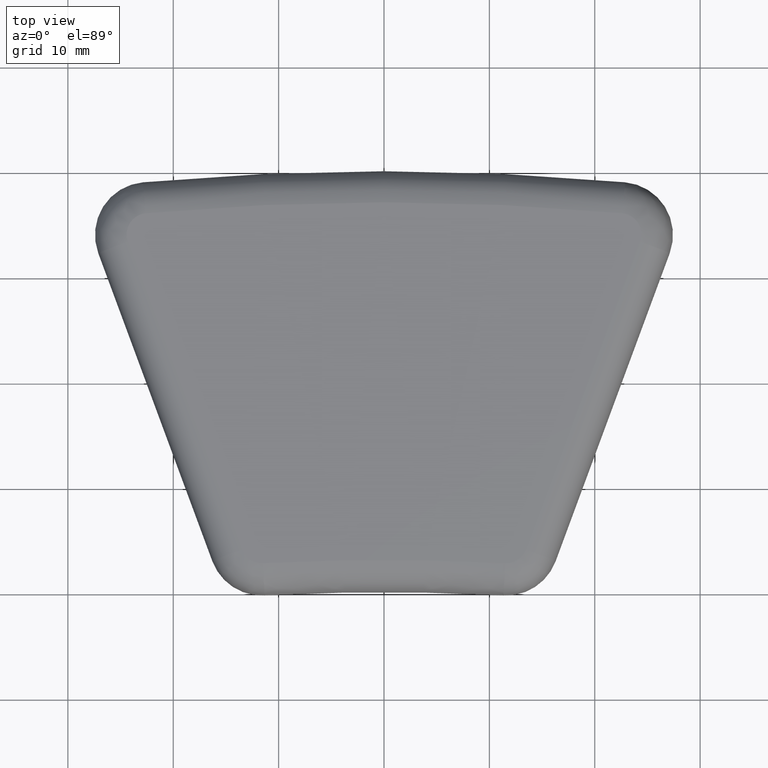
[diagram: clean part render]
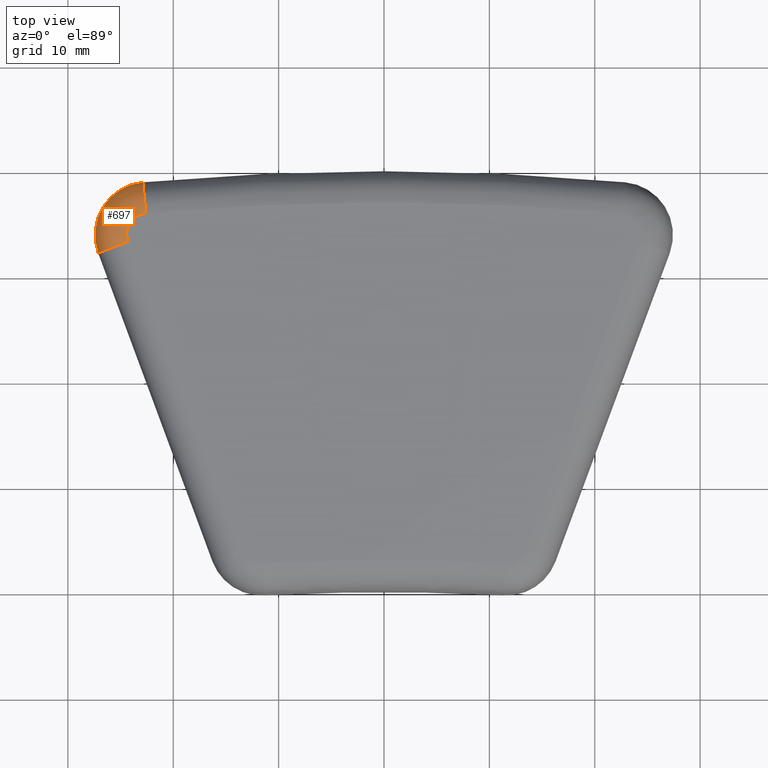
[diagram: same view with one face highlighted and labeled with its STEP entity id]
A machine part, top view. The second image highlights one B-rep face of the part: STEP entity #697.
In plain terms, the highlighted face is a freeform B-spline surface patch.
Its self-contained STEP definition (entity closure, byte-faithful):
#124=CARTESIAN_POINT('',(-22.608780951626066,15.963092808415876,4.0));
#125=VERTEX_POINT('',#124);
#133=CARTESIAN_POINT('',(-24.301222518549796,13.276890070985850,4.0));
#134=VERTEX_POINT('',#133);
#135=CARTESIAN_POINT('',(-22.425713899386182,13.971488818064332,4.0));
#136=DIRECTION('',(0.0,0.0,-1.0));
#137=DIRECTION('',(-0.937754309581807,-0.347299373539241,0.0));
#138=AXIS2_PLACEMENT_3D('',#135,#136,#137);
#139=CIRCLE('',#138,2.000000000000001);
#140=EDGE_CURVE('',#134,#125,#139,.T.);
#216=CARTESIAN_POINT('',(-22.883381529985897,18.950498793943193,1.0));
#217=VERTEX_POINT('',#216);
#240=CARTESIAN_POINT('',(-27.114485447295216,12.234991950368126,1.0));
#241=VERTEX_POINT('',#240);
#248=CARTESIAN_POINT('',(-22.425713899386182,13.971488818064332,1.0));
#249=DIRECTION('',(0.0,0.0,-1.0));
#250=DIRECTION('',(-0.937754309581807,-0.347299373539241,0.0));
#251=AXIS2_PLACEMENT_3D('',#248,#249,#250);
#252=CIRCLE('',#251,5.000000000000001);
#253=EDGE_CURVE('',#241,#217,#252,.T.);
#596=CARTESIAN_POINT('',(-24.301222518549800,13.276890070985850,1.0));
#597=DIRECTION('',(-0.347299373539241,0.937754309581807,0.0));
#598=DIRECTION('',(-0.937754309581807,-0.347299373539241,0.0));
#599=AXIS2_PLACEMENT_3D('',#596,#597,#598);
#600=CIRCLE('',#599,3.000000000000000);
#601=EDGE_CURVE('',#241,#134,#600,.T.);
#607=CARTESIAN_POINT('',(-27.114485447295216,12.234991950368126,1.0));
#608=CARTESIAN_POINT('',(-27.114485447295216,12.234991950368126,1.390180644032257));
#609=CARTESIAN_POINT('',(-26.968086687591406,12.289211053402402,2.179083452029826));
#610=CARTESIAN_POINT('',(-26.341999770429922,12.521083721850356,3.176238734418843));
#611=CARTESIAN_POINT('',(-25.406913107047359,12.867395126745407,3.843883671652661));
#612=CARTESIAN_POINT('',(-24.667116099006449,13.141380577746309,4.0));
#613=CARTESIAN_POINT('',(-24.301222518549796,13.276890070985850,4.0));
#614=CARTESIAN_POINT('',(-27.246879719660413,12.592474021842076,1.0));
#615=CARTESIAN_POINT('',(-27.246879719660413,12.592474021842076,1.390180644032257));
#616=CARTESIAN_POINT('',(-27.096347178417432,12.635531367186648,2.179083452029826));
#617=CARTESIAN_POINT('',(-26.452581788123286,12.819669816600308,3.176238734418843));
#618=CARTESIAN_POINT('',(-25.491091595131305,13.094688194309445,3.843883671652661));
#619=CARTESIAN_POINT('',(-24.730405344444055,13.312269923311428,4.0));
#620=CARTESIAN_POINT('',(-24.354180227495888,13.419882899575425,4.0));
#621=CARTESIAN_POINT('',(-27.430182153178293,13.340682839310919,1.0));
#622=CARTESIAN_POINT('',(-27.430182153178293,13.340682839310919,1.390180644032257));
#623=CARTESIAN_POINT('',(-27.273926311355716,13.360378661971422,2.179083452029824));
#624=CARTESIAN_POINT('',(-26.605684732717393,13.444609545589733,3.176238734418844));
#625=CARTESIAN_POINT('',(-25.607638341754011,13.570411848365048,3.843883671652661));
#626=CARTESIAN_POINT('',(-24.818030530163746,13.669940769953083,4.0));
#627=CARTESIAN_POINT('',(-24.427501200903027,13.719166426562968,4.0));
#628=CARTESIAN_POINT('',(-27.442526430284172,14.493848792675701,1.0));
#629=CARTESIAN_POINT('',(-27.442526430284172,14.493848792675701,1.390180644032256));
#630=CARTESIAN_POINT('',(-27.285885159818033,14.477539008413309,2.179083452029825));
#631=CARTESIAN_POINT('',(-26.615995262356989,14.407788809920746,3.176238734418842));
#632=CARTESIAN_POINT('',(-25.615487039168908,14.303614008322274,3.843883671652661));
#633=CARTESIAN_POINT('',(-24.823931540604359,14.221195758170989,4.0));
#634=CARTESIAN_POINT('',(-24.432438911745379,14.180432807908879,4.0));
#635=CARTESIAN_POINT('',(-27.192628504586160,15.620262456232739,1.000000000000000));
#636=CARTESIAN_POINT('',(-27.192628504586160,15.620262456232739,1.390180644032256));
#637=CARTESIAN_POINT('',(-27.043789863444324,15.568782358899393,2.179083452029824));
#638=CARTESIAN_POINT('',(-26.407268582966779,15.348623284465839,3.176238734418843));
#639=CARTESIAN_POINT('',(-25.456597767112299,15.019806615913176,3.843883671652661));
#640=CARTESIAN_POINT('',(-24.704471303606908,14.759662185332484,3.999999999999999));
#641=CARTESIAN_POINT('',(-24.332479741466173,14.630998273331695,3.999999999999999));
#642=CARTESIAN_POINT('',(-26.693276720727209,16.660266030467120,1.000000000000000));
#643=CARTESIAN_POINT('',(-26.693276720727209,16.660266030467120,1.390180644032257));
#644=CARTESIAN_POINT('',(-26.560029472995321,16.576313625238249,2.179083452029825));
#645=CARTESIAN_POINT('',(-25.990186130596225,16.217283926596188,3.176238734418844));
#646=CARTESIAN_POINT('',(-25.139101568550767,15.681058246493247,3.843883671652661));
#647=CARTESIAN_POINT('',(-24.465763109938390,15.256821467904361,4.000000000000001));
#648=CARTESIAN_POINT('',(-24.132739027922593,15.046999703025449,4.000000000000001));
#649=CARTESIAN_POINT('',(-25.970723161037501,17.559641364709243,1.0));
#650=CARTESIAN_POINT('',(-25.970723161037501,17.559641364709243,1.390180644032257));
#651=CARTESIAN_POINT('',(-25.860036395060249,17.447607524482777,2.179083452029826));
#652=CARTESIAN_POINT('',(-25.386674897862541,16.968485148124742,3.176238734418844));
#653=CARTESIAN_POINT('',(-24.679689955587826,16.252896094943843,3.843883671652661));
#654=CARTESIAN_POINT('',(-24.120356403408994,15.686755371029477,4.0));
#655=CARTESIAN_POINT('',(-23.843717604046709,15.406749836722295,4.0));
#656=CARTESIAN_POINT('',(-25.062541689863419,18.271303595077164,1.0));
#657=CARTESIAN_POINT('',(-25.062541689863419,18.271303595077164,1.390180644032256));
#658=CARTESIAN_POINT('',(-24.980211315236705,18.137049335964988,2.179083452029824));
#659=CARTESIAN_POINT('',(-24.628118370302804,17.562899422581840,3.176238734418844));
#660=CARTESIAN_POINT('',(-24.102253018297887,16.705382818943296,3.843883671652661));
#661=CARTESIAN_POINT('',(-23.686212848675190,16.026955628652320,4.0));
#662=CARTESIAN_POINT('',(-23.480445015577075,15.691414728869464,4.0));
#663=CARTESIAN_POINT('',(-24.017024878378479,18.757964353798606,1.000000000000000));
#664=CARTESIAN_POINT('',(-24.017024878378479,18.757964353798606,1.390180644032256));
#665=CARTESIAN_POINT('',(-23.967338952918659,18.608514956525958,2.179083452029825));
#666=CARTESIAN_POINT('',(-23.754852809180903,17.969381724800670,3.176238734418843));
#667=CARTESIAN_POINT('',(-23.437495979455733,17.014809851904008,3.843883671652661));
#668=CARTESIAN_POINT('',(-23.186418039510858,16.259597053793527,3.999999999999999));
#669=CARTESIAN_POINT('',(-23.062238290983107,15.886079032358044,3.999999999999999));
#670=CARTESIAN_POINT('',(-23.262992006179896,18.915605225134893,1.0));
#671=CARTESIAN_POINT('',(-23.262992006179896,18.915605225134893,1.390180644032256));
#672=CARTESIAN_POINT('',(-23.236849449412247,18.761233765056158,2.179083452029825));
#673=CARTESIAN_POINT('',(-23.125048551600742,18.101050907401081,3.176238734418843));
#674=CARTESIAN_POINT('',(-22.958069294197141,17.115040548989779,3.843883671652661));
#675=CARTESIAN_POINT('',(-22.825963084292244,16.334955085668803,4.0));
#676=CARTESIAN_POINT('',(-22.760625142103667,15.949135380892544,4.0));
#677=CARTESIAN_POINT('',(-22.883381529985897,18.950498793943193,1.0));
#678=CARTESIAN_POINT('',(-22.883381529985897,18.950498793943193,1.390180644032256));
#679=CARTESIAN_POINT('',(-22.869091651967363,18.795037842695397,2.179083452029825));
#680=CARTESIAN_POINT('',(-22.807979756666228,18.130195682128956,3.176238734418843));
#681=CARTESIAN_POINT('',(-22.716706617580041,17.137226462425915,3.843883671652661));
#682=CARTESIAN_POINT('',(-22.644495561798092,16.351635472222164,4.0));
#683=CARTESIAN_POINT('',(-22.608780951626070,15.963092808415876,4.0));
#684=B_SPLINE_SURFACE_WITH_KNOTS('',3,3,((#607,#614,#621,#628,#635,#642,#649,#656,#663,#670,#677),(#608,#615,#622,#629,#636,#643,#650,#657,#664,#671,#678),(#609,#616,#623,#630,#637,#644,#651,#658,#665,#672,#679),(#610,#617,#624,#631,#638,#645,#652,#659,#666,#673,#680),(#611,#618,#625,#632,#639,#646,#653,#660,#667,#674,#681),(#612,#619,#626,#633,#640,#647,#654,#661,#668,#675,#682),(#613,#620,#627,#634,#641,#648,#655,#662,#669,#676,#683)),.UNSPECIFIED.,.F.,.F.,.U.,(4,1,1,1,4),(4,1,1,1,1,1,1,1,4),(0.0,1.170541932096769,2.341083864193538,3.511625796290309,4.682167728387078),(0.0,0.871036605968722,1.742073211937444,2.613109817906165,3.484146423874885,4.355183029843608,5.226219635812330,6.097256241781054,6.968292847749773),.UNSPECIFIED.);
#685=ORIENTED_EDGE('',*,*,#601,.T.);
#686=ORIENTED_EDGE('',*,*,#140,.T.);
#687=CARTESIAN_POINT('',(-22.608780951626063,15.963092808415867,1.0));
#688=DIRECTION('',(-0.995801995175776,-0.091533526119909,0.0));
#689=DIRECTION('',(-0.091533526119909,0.995801995175776,0.0));
#690=AXIS2_PLACEMENT_3D('',#687,#688,#689);
#691=CIRCLE('',#690,3.000000000000018);
#692=EDGE_CURVE('',#125,#217,#691,.T.);
#693=ORIENTED_EDGE('',*,*,#692,.T.);
#694=ORIENTED_EDGE('',*,*,#253,.F.);
#695=EDGE_LOOP('',(#685,#686,#693,#694));
#696=FACE_OUTER_BOUND('',#695,.T.);
#697=ADVANCED_FACE('',(#696),#684,.T.);